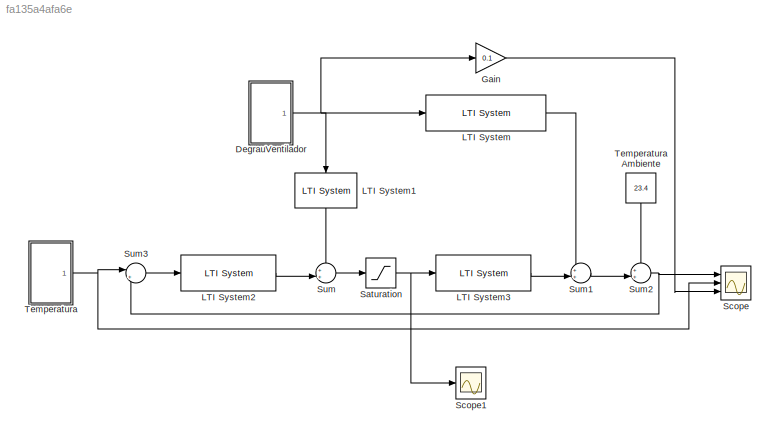
MODEL slx_fa135a4afa6e
KIND model
CONFIG AbsTol = auto
CONFIG EnableMultiTasking = off
CONFIG FixedStep = auto
CONFIG MaxStep = auto
CONFIG MinStep = auto
CONFIG RelTol = 1e-3
CONFIG SampleTimeConstraint = Unconstrained
CONFIG SolverName = VariableStepAuto
CONFIG StartTime = 0.0
CONFIG StopTime = 1000
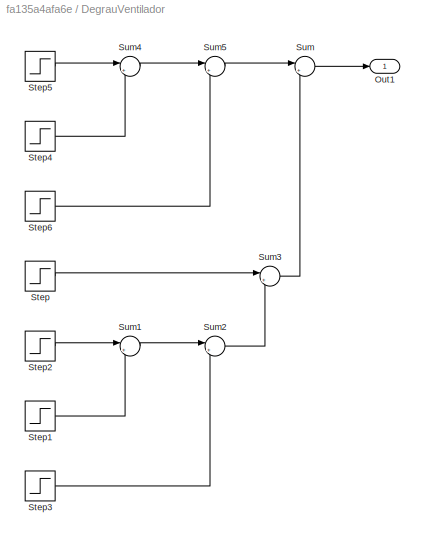
BLOCK [SubSystem] DegrauVentilador
  Ports = [0, 1]
  RequestExecContextInheritance = off
BLOCK [Outport] DegrauVentilador/Out1
BLOCK [Step] DegrauVentilador/Step
  After = -1000
  SampleTime = 0
  Time = 1200
BLOCK [Step] DegrauVentilador/Step1
  After = -500
  SampleTime = 0
  Time = 1716
BLOCK [Step] DegrauVentilador/Step2
  After = 500
  SampleTime = 0
  Time = 1448
BLOCK [Step] DegrauVentilador/Step3
  After = 1000
  SampleTime = 0
  Time = 1997
BLOCK [Step] DegrauVentilador/Step4
  After = -500
  SampleTime = 0
  Time = 716
BLOCK [Step] DegrauVentilador/Step5
  After = 500
  SampleTime = 0
  Time = 448
BLOCK [Step] DegrauVentilador/Step6
  After = 1000
  SampleTime = 0
  Time = 997
BLOCK [Sum] DegrauVentilador/Sum
  Inputs = |++
  Ports = [2, 1]
BLOCK [Sum] DegrauVentilador/Sum1
  Inputs = |++
  Ports = [2, 1]
BLOCK [Sum] DegrauVentilador/Sum2
  Inputs = |++
  Ports = [2, 1]
BLOCK [Sum] DegrauVentilador/Sum3
  Inputs = |++
  Ports = [2, 1]
BLOCK [Sum] DegrauVentilador/Sum4
  Inputs = |++
  Ports = [2, 1]
BLOCK [Sum] DegrauVentilador/Sum5
  Inputs = |++
  Ports = [2, 1]
BLOCK [Gain] Gain
  Gain = 0.1
BLOCK [Reference] LTI System  REF=cstblocks/LTI System
  Ports = [1, 1]
  SourceBlock = cstblocks/LTI System
  SourceProductBaseCode = CT
  SourceType = LTI Block
BLOCK [Reference] LTI System1  REF=cstblocks/LTI System
  NameLocation = left
  Ports = [1, 1]
  SourceBlock = cstblocks/LTI System
  SourceProductBaseCode = CT
  SourceType = LTI Block
BLOCK [Reference] LTI System2  REF=cstblocks/LTI System
  Ports = [1, 1]
  SourceBlock = cstblocks/LTI System
  SourceProductBaseCode = CT
  SourceType = LTI Block
BLOCK [Reference] LTI System3  REF=cstblocks/LTI System
  Ports = [1, 1]
  SourceBlock = cstblocks/LTI System
  SourceProductBaseCode = CT
  SourceType = LTI Block
BLOCK [Saturate] Saturation
  LowerLimit = 0
  UpperLimit = 200
  ZeroCross = off
BLOCK [Scope] Scope
  Floating = off
  NumInputPorts = 3
  Ports = [3]
  ScopeSpecificationString = Simulink.scopes.TimeScopeBlockCfg('CurrentConfiguration', extmgr.ConfigurationSet(extmgr.Configuration('Core','General UI',true),extmgr.Configuration('Core','Source UI',true),extmgr.Configuration('Sources','WiredSimulink',true),extmgr.Configuration('Visuals','Time Domain',true,'SerializedDisplays',{struct('MinYLimReal','-6.875','MaxYLimReal','61.875','YLabelReal','','MinYLimMag','0.00000','MaxYLim...<+1437ch>
BLOCK [Scope] Scope1
  Floating = off
  NumInputPorts = 1
  Ports = [1]
  ScopeSpecificationString = Simulink.scopes.TimeScopeBlockCfg('CurrentConfiguration', extmgr.ConfigurationSet(extmgr.Configuration('Core','General UI',true),extmgr.Configuration('Core','Source UI',true),extmgr.Configuration('Sources','WiredSimulink',true,'DataLoggingVariableName','ScopeData1'),extmgr.Configuration('Visuals','Time Domain',true,'SerializedDisplays',{struct('MinYLimReal','-9.875','MaxYLimReal','88.875','YLabelR...<+1389ch>
BLOCK [Sum] Sum
  Inputs = ++|
  Ports = [2, 1]
BLOCK [Sum] Sum1
  Inputs = ++|
  Ports = [2, 1]
BLOCK [Sum] Sum2
  Inputs = ++|
  Ports = [2, 1]
BLOCK [Sum] Sum3
  Inputs = |+-
  Ports = [2, 1]
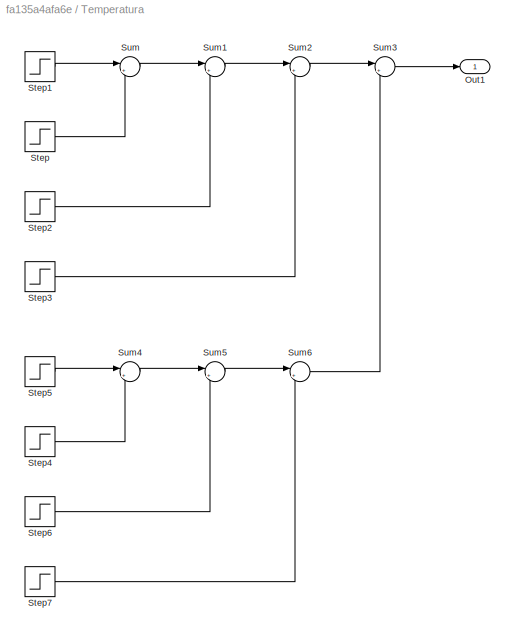
BLOCK [SubSystem] Temperatura
  Ports = [0, 1]
  RequestExecContextInheritance = off
BLOCK [Constant] Temperatura Ambiente
  NameLocation = top
  Value = 23.4
BLOCK [Outport] Temperatura/Out1
BLOCK [Step] Temperatura/Step
  After = 25
  SampleTime = 0
  Time = 399
BLOCK [Step] Temperatura/Step1
  After = 25
  SampleTime = 0
  Time = 84
BLOCK [Step] Temperatura/Step2
  After = 25
  SampleTime = 0
  Time = 844
BLOCK [Step] Temperatura/Step3
  After = 25
  SampleTime = 0
  Time = 1404
BLOCK [Step] Temperatura/Step4
  After = -25
  SampleTime = 0
  Time = 2225
BLOCK [Step] Temperatura/Step5
  After = -25
  SampleTime = 0
  Time = 1632
BLOCK [Step] Temperatura/Step6
  After = -25
  SampleTime = 0
  Time = 2874
BLOCK [Step] Temperatura/Step7
  After = -25
  SampleTime = 0
  Time = 3545
BLOCK [Sum] Temperatura/Sum
  Inputs = |++
  Ports = [2, 1]
BLOCK [Sum] Temperatura/Sum1
  Inputs = |++
  Ports = [2, 1]
BLOCK [Sum] Temperatura/Sum2
  Inputs = |++
  Ports = [2, 1]
BLOCK [Sum] Temperatura/Sum3
  Inputs = |++
  Ports = [2, 1]
BLOCK [Sum] Temperatura/Sum4
  Inputs = |++
  Ports = [2, 1]
BLOCK [Sum] Temperatura/Sum5
  Inputs = |++
  Ports = [2, 1]
BLOCK [Sum] Temperatura/Sum6
  Inputs = |++
  Ports = [2, 1]
LINE DegrauVentilador/Step1:1 -> DegrauVentilador/Sum1:2
LINE DegrauVentilador/Step2:1 -> DegrauVentilador/Sum1:1
LINE DegrauVentilador/Step3:1 -> DegrauVentilador/Sum2:2
LINE DegrauVentilador/Step4:1 -> DegrauVentilador/Sum4:2
LINE DegrauVentilador/Step5:1 -> DegrauVentilador/Sum4:1
LINE DegrauVentilador/Step6:1 -> DegrauVentilador/Sum5:2
LINE DegrauVentilador/Step:1 -> DegrauVentilador/Sum3:1
LINE DegrauVentilador/Sum1:1 -> DegrauVentilador/Sum2:1
LINE DegrauVentilador/Sum2:1 -> DegrauVentilador/Sum3:2
LINE DegrauVentilador/Sum3:1 -> DegrauVentilador/Sum:2
LINE DegrauVentilador/Sum4:1 -> DegrauVentilador/Sum5:1
LINE DegrauVentilador/Sum5:1 -> DegrauVentilador/Sum:1
LINE DegrauVentilador/Sum:1 -> DegrauVentilador/Out1:1
NET DegrauVentilador:1 -> Gain:1, LTI System1:1, LTI System:1
LINE Gain:1 -> Scope:3
LINE LTI System1:1 -> Sum:1
LINE LTI System2:1 -> Sum:2
LINE LTI System3:1 -> Sum1:2
LINE LTI System:1 -> Sum1:1
NET Saturation:1 -> LTI System3:1, Scope1:1
LINE Sum1:1 -> Sum2:2
NET Sum2:1 -> Scope:1, Sum3:2
LINE Sum3:1 -> LTI System2:1
LINE Sum:1 -> Saturation:1
LINE Temperatura Ambiente:1 -> Sum2:1
LINE Temperatura/Step1:1 -> Temperatura/Sum:1
LINE Temperatura/Step2:1 -> Temperatura/Sum1:2
LINE Temperatura/Step3:1 -> Temperatura/Sum2:2
LINE Temperatura/Step4:1 -> Temperatura/Sum4:2
LINE Temperatura/Step5:1 -> Temperatura/Sum4:1
LINE Temperatura/Step6:1 -> Temperatura/Sum5:2
LINE Temperatura/Step7:1 -> Temperatura/Sum6:2
LINE Temperatura/Step:1 -> Temperatura/Sum:2
LINE Temperatura/Sum1:1 -> Temperatura/Sum2:1
LINE Temperatura/Sum2:1 -> Temperatura/Sum3:1
LINE Temperatura/Sum3:1 -> Temperatura/Out1:1
LINE Temperatura/Sum4:1 -> Temperatura/Sum5:1
LINE Temperatura/Sum5:1 -> Temperatura/Sum6:1
LINE Temperatura/Sum6:1 -> Temperatura/Sum3:2
LINE Temperatura/Sum:1 -> Temperatura/Sum1:1
NET Temperatura:1 -> Scope:2, Sum3:1
note: NET lines group one-source signal fan-out (src -> all destinations, sorted); 1:1 wires keep LINE
